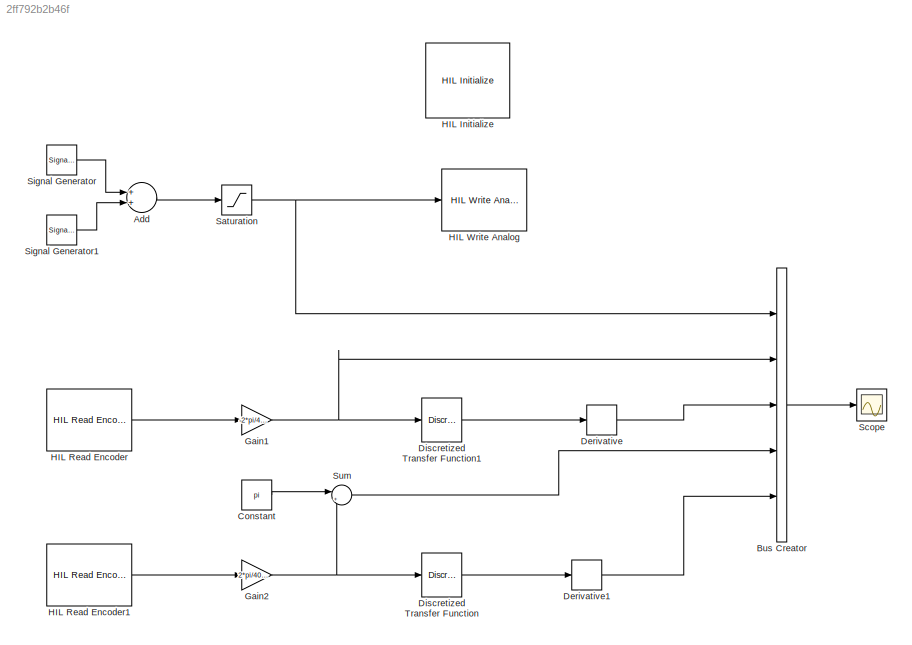
MODEL slx_2ff792b2b46f
KIND model
BLOCK [Sum] Add
  InputSameDT = off
  OutDataTypeStr = Inherit: Inherit via internal rule
  Ports = [2, 1]
  SaturateOnIntegerOverflow = off
BLOCK [BusCreator] Bus Creator
  DisplayOption = bar
  Inputs = 5
  Ports = [5, 1]
BLOCK [Constant] Constant
  Value = pi
BLOCK [Derivative] Derivative
BLOCK [Derivative] Derivative1
BLOCK [Reference] Discretized Transfer Function  REF=quarc_library/Discrete/Discretized
Transfer Function
  Ports = [1, 1]
  SourceBlock = quarc_library/Discrete/Discretized\nTransfer Function
  SourceType = Discretized Transfer Function
  Ts = qc_get_step_size
  den = [1 100]
  method = tustin
  num = 100
BLOCK [Reference] Discretized Transfer Function1  REF=quarc_library/Discrete/Discretized
Transfer Function
  Ports = [1, 1]
  SourceBlock = quarc_library/Discrete/Discretized\nTransfer Function
  SourceType = Discretized Transfer Function
  Ts = qc_get_step_size
  den = [1 100]
  method = tustin
  num = 100
BLOCK [Gain] Gain1
  Gain = -2*pi/4096
  OutDataTypeStr = Inherit: Inherit via internal rule
  ParamDataTypeStr = Inherit: Inherit via internal rule
  ParamMax = [512]
  ParamMin = [-512]
  SaturateOnIntegerOverflow = off
BLOCK [Gain] Gain2
  Gain = 2*pi/4096
  OutDataTypeStr = Inherit: Inherit via internal rule
  ParamDataTypeStr = Inherit: Inherit via internal rule
  ParamMax = [512]
  ParamMin = [-512]
  SaturateOnIntegerOverflow = off
BLOCK [Reference] HIL Initialize  REF=quarc_library/Data Acquisition/Generic/Configuration/HIL Initialize
  AttributesFormatString = %<object_name> (%<board_type>-%<board_number>)
  Ports = []
  Priority = -99
  SourceBlock = quarc_library/Data Acquisition/Generic/Configuration/HIL Initialize
  SourceType = HIL Initialize
  UserDataPersistent = on
  active = off
  analog_input_channels = [0:1]
  analog_input_maximums = 10
  analog_input_minimums = -10
  analog_output_channels = [0:1]
  analog_output_maximums = 10
  analog_output_minimums = -10
  board_number = 0
  board_options = d0=digital;d1=digital;led=auto;update_rate=normal;decimation=1
  board_type = q2_usb
  clock_modes = []
  digital_input_channels = []
  digital_output_channels = []
  digital_output_configuration = []
  encoder_channels = [0:1]
  encoder_filter_frequency = []
  exclusive = off
  final_analog_outputs = [0]
  final_digital_outputs = [1]
  final_other_outputs = []
  final_pwm_outputs = [0]
  hardware_clocks = [0]
  initial_analog_outputs = [0]
  initial_clock_frequencies = []
  initial_digital_outputs = [1]
  initial_encoder_counts = [0]
  initial_other_outputs = []
  initial_pwm_outputs = [0]
  object_name = HIL-1
  other_output_channels = []
  pwm_alignment = []
  pwm_channels = []
  pwm_configuration = []
  pwm_frequency = 1/0.020
  pwm_leading_deadband = []
  pwm_modes = [0]
  pwm_polarity = []
  pwm_trailing_deadband = []
  quadrature = [4]
  set_analog_input_params_at_start = on
  set_analog_input_params_at_switch_in = off
  set_analog_output_params_at_start = on
  set_analog_output_params_at_switch_in = off
  set_analog_outputs_at_start = on
  set_analog_outputs_at_switch_in = off
  set_analog_outputs_at_switch_out = off
  set_analog_outputs_at_terminate = on
  set_analog_outputs_on_watchdog = off
  set_clock_frequencies_at_start = off
  set_clock_frequencies_at_switch_in = off
  set_clock_params_at_start = off
  set_clock_params_at_switch_in = off
  set_digital_output_params_at_start = off
  set_digital_output_params_at_switch_in = off
  set_digital_outputs_at_start = on
  set_digital_outputs_at_switch_in = off
  set_digital_outputs_at_switch_out = off
  set_digital_outputs_at_terminate = on
  set_digital_outputs_on_watchdog = off
  set_encoder_counts_at_start = on
  set_encoder_counts_at_switch_in = off
  set_encoder_params_at_start = on
  set_encoder_params_at_switch_in = off
  set_other_outputs_at_start = off
  set_other_outputs_at_switch_in = off
  set_other_outputs_at_switch_out = off
  set_other_outputs_at_terminate = off
  set_other_outputs_on_watchdog = off
  set_pwm_outputs_at_start = on
  set_pwm_outputs_at_switch_in = off
  set_pwm_outputs_at_switch_out = off
  set_pwm_outputs_at_terminate = on
  set_pwm_outputs_on_watchdog = off
  set_pwm_params_at_start = on
  set_pwm_params_at_switch_in = off
  watchdog_analog_outputs = 0
  watchdog_digital_outputs = [1]
  watchdog_other_outputs = []
  watchdog_pwm_outputs = [0]
BLOCK [Reference] HIL Read Encoder  REF=quarc_library/Data Acquisition/Generic/Immediate I//O/HIL Read Encoder
  AttributesFormatString = (%<object_name>)
  Ports = [0, 1]
  SourceBlock = quarc_library/Data Acquisition/Generic/Immediate I//O/HIL Read Encoder
  SourceType = HIL Read Encoder
  UserDataPersistent = on
  active = on
  channels = 0
  data_type = double
  data_type_mode = Inherit via back propagation
  object_name = HIL-1
  sample_time = qc_get_step_size
  vector_output = off
BLOCK [Reference] HIL Read Encoder1  REF=quarc_library/Data Acquisition/Generic/Immediate I//O/HIL Read Encoder
  AttributesFormatString = (%<object_name>)
  Ports = [0, 1]
  SourceBlock = quarc_library/Data Acquisition/Generic/Immediate I//O/HIL Read Encoder
  SourceType = HIL Read Encoder
  UserDataPersistent = on
  active = on
  channels = 1
  data_type = double
  data_type_mode = Inherit via back propagation
  object_name = HIL-1
  sample_time = qc_get_step_size
  vector_output = off
BLOCK [Reference] HIL Write Analog  REF=quarc_library/Data Acquisition/Generic/Immediate I//O/HIL Write Analog
  AttributesFormatString = (%<object_name>)
  Ports = [1]
  SourceBlock = quarc_library/Data Acquisition/Generic/Immediate I//O/HIL Write Analog
  SourceType = HIL Write Analog
  UserDataPersistent = on
  active = off
  channels = 0
  object_name = HIL-1
  sample_time = -1
  vector_input = off
BLOCK [Saturate] Saturation
  InputPortMap = u0
  LowerLimit = -10
  Ports = [1, 1]
  UpperLimit = 10
BLOCK [Scope] Scope
  Floating = off
  MaxDataPoints = 15000
  NumInputPorts = 1
  Ports = [1]
  SampleTime = 0
  SaveName = realActualData
  SaveToWorkspace = on
  ShowLegends = off
  YMax = 20
  YMin = -22.5
BLOCK [SignalGenerator] Signal Generator
  Frequency = 5
  Ports = [0, 1]
BLOCK [SignalGenerator] Signal Generator1
  Amplitude = 10
  Frequency = sqrt(2)
  Ports = [0, 1]
BLOCK [Sum] Sum
  IconShape = round
  InputSameDT = off
  Inputs = |++
  OutDataTypeStr = Inherit: Inherit via internal rule
  Ports = [2, 1]
  SaturateOnIntegerOverflow = off
LINE Add:1 -> Saturation:1
LINE Bus Creator:1 -> Scope:1
LINE Constant:1 -> Sum:1
LINE Derivative1:1 -> Bus Creator:5
LINE Derivative:1 -> Bus Creator:3
LINE Discretized Transfer Function1:1 -> Derivative:1
LINE Discretized Transfer Function:1 -> Derivative1:1
NET Gain1:1 -> Bus Creator:2, Discretized Transfer Function1:1
NET Gain2:1 -> Discretized Transfer Function:1, Sum:2
LINE HIL Read Encoder1:1 -> Gain2:1
LINE HIL Read Encoder:1 -> Gain1:1
NET Saturation:1 -> Bus Creator:1, HIL Write Analog:1
LINE Signal Generator1:1 -> Add:2
LINE Signal Generator:1 -> Add:1
LINE Sum:1 -> Bus Creator:4
note: NET lines group one-source signal fan-out (src -> all destinations, sorted); 1:1 wires keep LINE
